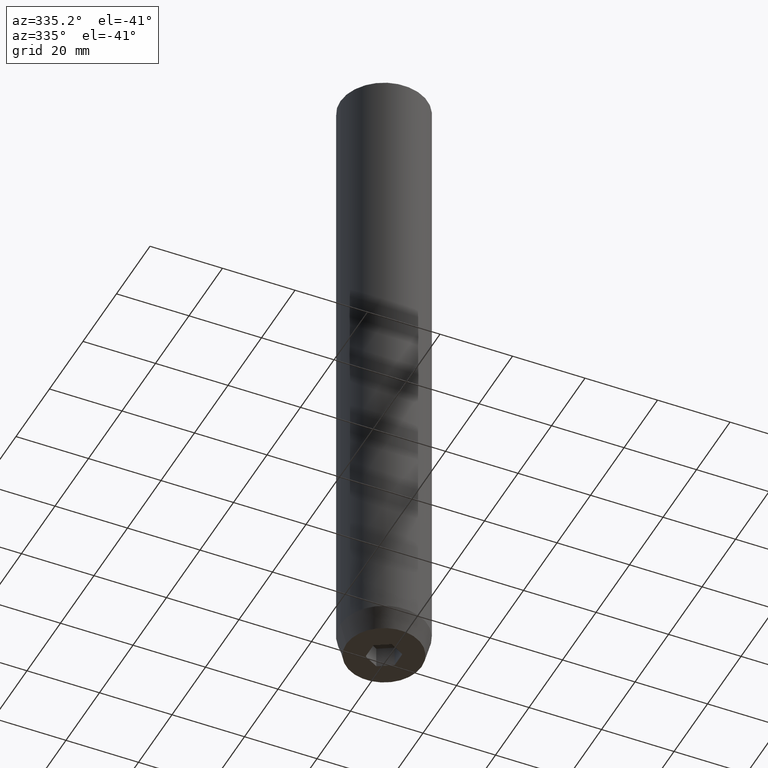
[diagram: clean part render]
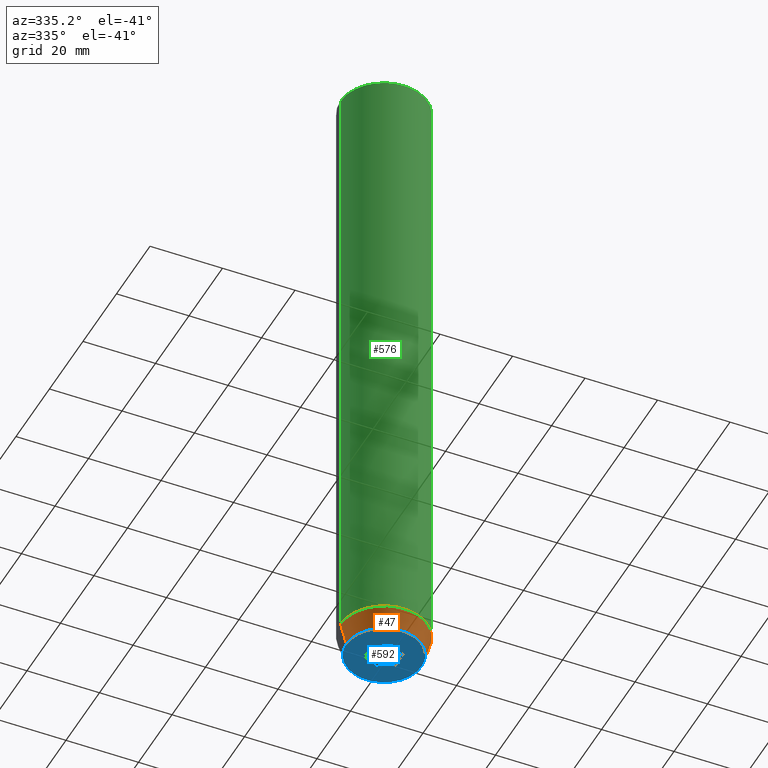
[diagram: same view with three faces highlighted in distinct colors, each labeled with its STEP entity id]
A machine part, auxiliary view with three faces highlighted in distinct colors.
Their STEP definitions:

[orange] entity #47 — the highlighted conical surface has half-angle 15 deg.
#47 = ADVANCED_FACE ( 'NONE', ( #359 ), #133, .T. ) ;
#57 = AXIS2_PLACEMENT_3D ( 'NONE', #552, #428, #436 ) ;
#58 = CIRCLE ( 'NONE', #268, 12.00000000000000000 ) ;
#75 = CARTESIAN_POINT ( 'NONE',  ( 12.00000000000000000, 0.000000000000000000, -174.0000000000000000 ) ) ;
#81 = VECTOR ( 'NONE', #579, 1000.000000000000000 ) ;
#88 = DIRECTION ( 'NONE',  ( 1.000000000000000000, 0.000000000000000000, 0.000000000000000000 ) ) ;
#129 = LINE ( 'NONE', #75, #81 ) ;
#130 = VERTEX_POINT ( 'NONE', #280 ) ;
#133 = CONICAL_SURFACE ( 'NONE', #57, 12.00000000000000000, 0.2617993877991501295 ) ;
#140 = CARTESIAN_POINT ( 'NONE',  ( 0.000000000000000000, 0.000000000000000000, -174.0000000000000000 ) ) ;
#151 = DIRECTION ( 'NONE',  ( -0.2588190451025214056, 3.169619151431772953E-17, 0.9659258262890680902 ) ) ;
#160 = VERTEX_POINT ( 'NONE', #260 ) ;
#179 = ORIENTED_EDGE ( 'NONE', *, *, #442, .T. ) ;
#199 = CARTESIAN_POINT ( 'NONE',  ( 12.00000000000000000, 0.000000000000000000, -174.0000000000000000 ) ) ;
#201 = EDGE_CURVE ( 'NONE', #461, #130, #440, .T. ) ;
#244 = ORIENTED_EDGE ( 'NONE', *, *, #551, .F. ) ;
#260 = CARTESIAN_POINT ( 'NONE',  ( -12.00000000000000000, 1.469576158976823947E-15, -174.0000000000000000 ) ) ;
#262 = AXIS2_PLACEMENT_3D ( 'NONE', #394, #441, #351 ) ;
#268 = AXIS2_PLACEMENT_3D ( 'NONE', #140, #475, #88 ) ;
#280 = CARTESIAN_POINT ( 'NONE',  ( 10.39230484541325872, 0.000000000000000000, -180.0000000000000000 ) ) ;
#288 = ORIENTED_EDGE ( 'NONE', *, *, #447, .F. ) ;
#326 = CARTESIAN_POINT ( 'NONE',  ( -10.39230484541325872, 1.371133222723355777E-15, -180.0000000000000000 ) ) ;
#335 = EDGE_LOOP ( 'NONE', ( #244, #520, #179, #288 ) ) ;
#345 = VECTOR ( 'NONE', #151, 1000.000000000000000 ) ;
#351 = DIRECTION ( 'NONE',  ( 1.000000000000000000, 0.000000000000000000, 0.000000000000000000 ) ) ;
#359 = FACE_OUTER_BOUND ( 'NONE', #335, .T. ) ;
#394 = CARTESIAN_POINT ( 'NONE',  ( 0.000000000000000000, 0.000000000000000000, -180.0000000000000000 ) ) ;
#395 = CARTESIAN_POINT ( 'NONE',  ( -12.00000000000000000, 1.469576158976823947E-15, -174.0000000000000000 ) ) ;
#428 = DIRECTION ( 'NONE',  ( -0.000000000000000000, -0.000000000000000000, 1.000000000000000000 ) ) ;
#436 = DIRECTION ( 'NONE',  ( 1.000000000000000000, 0.000000000000000000, 0.000000000000000000 ) ) ;
#440 = CIRCLE ( 'NONE', #262, 10.39230484541325872 ) ;
#441 = DIRECTION ( 'NONE',  ( -0.000000000000000000, -0.000000000000000000, 1.000000000000000000 ) ) ;
#442 = EDGE_CURVE ( 'NONE', #130, #545, #129, .T. ) ;
#447 = EDGE_CURVE ( 'NONE', #160, #545, #58, .T. ) ;
#461 = VERTEX_POINT ( 'NONE', #326 ) ;
#475 = DIRECTION ( 'NONE',  ( -0.000000000000000000, -0.000000000000000000, 1.000000000000000000 ) ) ;
#520 = ORIENTED_EDGE ( 'NONE', *, *, #201, .T. ) ;
#545 = VERTEX_POINT ( 'NONE', #199 ) ;
#551 = EDGE_CURVE ( 'NONE', #461, #160, #638, .T. ) ;
#552 = CARTESIAN_POINT ( 'NONE',  ( 0.000000000000000000, 0.000000000000000000, -174.0000000000000000 ) ) ;
#579 = DIRECTION ( 'NONE',  ( 0.2588190451025214056, 0.000000000000000000, 0.9659258262890680902 ) ) ;
#638 = LINE ( 'NONE', #395, #345 ) ;

[blue] entity #592 — the highlighted planar face has unit normal (0, 0, -1).
#32 = CARTESIAN_POINT ( 'NONE',  ( -1.999999999999999112, -3.464101615137755275, -180.0000000000000000 ) ) ;
#33 = DIRECTION ( 'NONE',  ( -0.000000000000000000, -0.000000000000000000, 1.000000000000000000 ) ) ;
#37 = CARTESIAN_POINT ( 'NONE',  ( -4.000000000000001776, -2.309401076758503368, -180.0000000000000000 ) ) ;
#45 = LINE ( 'NONE', #637, #574 ) ;
#55 = VERTEX_POINT ( 'NONE', #37 ) ;
#61 = CARTESIAN_POINT ( 'NONE',  ( 4.000000000000000000, 0.000000000000000000, -180.0000000000000000 ) ) ;
#64 = LINE ( 'NONE', #61, #431 ) ;
#90 = ORIENTED_EDGE ( 'NONE', *, *, #201, .F. ) ;
#96 = DIRECTION ( 'NONE',  ( -1.000000000000000000, 0.000000000000000000, -0.000000000000000000 ) ) ;
#105 = FACE_BOUND ( 'NONE', #323, .T. ) ;
#110 = ORIENTED_EDGE ( 'NONE', *, *, #240, .F. ) ;
#117 = EDGE_CURVE ( 'NONE', #463, #55, #515, .T. ) ;
#123 = CIRCLE ( 'NONE', #171, 10.39230484541325872 ) ;
#130 = VERTEX_POINT ( 'NONE', #280 ) ;
#147 = VECTOR ( 'NONE', #627, 1000.000000000000114 ) ;
#171 = AXIS2_PLACEMENT_3D ( 'NONE', #623, #33, #243 ) ;
#182 = ORIENTED_EDGE ( 'NONE', *, *, #346, .F. ) ;
#185 = VECTOR ( 'NONE', #496, 999.9999999999998863 ) ;
#201 = EDGE_CURVE ( 'NONE', #461, #130, #440, .T. ) ;
#224 = ORIENTED_EDGE ( 'NONE', *, *, #544, .F. ) ;
#234 = ORIENTED_EDGE ( 'NONE', *, *, #287, .F. ) ;
#240 = EDGE_CURVE ( 'NONE', #55, #433, #45, .T. ) ;
#241 = VERTEX_POINT ( 'NONE', #448 ) ;
#243 = DIRECTION ( 'NONE',  ( 1.000000000000000000, 0.000000000000000000, 0.000000000000000000 ) ) ;
#247 = VERTEX_POINT ( 'NONE', #456 ) ;
#253 = CARTESIAN_POINT ( 'NONE',  ( 2.000000000000000000, 3.464101615137755275, -180.0000000000000000 ) ) ;
#256 = DIRECTION ( 'NONE',  ( 3.755786496842898071E-16, 1.000000000000000000, 0.000000000000000000 ) ) ;
#261 = EDGE_LOOP ( 'NONE', ( #479, #90 ) ) ;
#262 = AXIS2_PLACEMENT_3D ( 'NONE', #394, #441, #351 ) ;
#280 = CARTESIAN_POINT ( 'NONE',  ( 10.39230484541325872, 0.000000000000000000, -180.0000000000000000 ) ) ;
#283 = ORIENTED_EDGE ( 'NONE', *, *, #542, .F. ) ;
#287 = EDGE_CURVE ( 'NONE', #241, #463, #414, .T. ) ;
#294 = DIRECTION ( 'NONE',  ( 0.000000000000000000, 0.000000000000000000, -1.000000000000000000 ) ) ;
#311 = VECTOR ( 'NONE', #391, 999.9999999999998863 ) ;
#315 = CARTESIAN_POINT ( 'NONE',  ( 1.999999999999999556, -3.464101615137754386, -180.0000000000000000 ) ) ;
#323 = EDGE_LOOP ( 'NONE', ( #224, #110, #510, #234, #182, #283 ) ) ;
#326 = CARTESIAN_POINT ( 'NONE',  ( -10.39230484541325872, 1.371133222723355777E-15, -180.0000000000000000 ) ) ;
#344 = CARTESIAN_POINT ( 'NONE',  ( 0.000000000000000000, 10.39230484541325872, -180.0000000000000000 ) ) ;
#346 = EDGE_CURVE ( 'NONE', #405, #241, #64, .T. ) ;
#351 = DIRECTION ( 'NONE',  ( 1.000000000000000000, 0.000000000000000000, 0.000000000000000000 ) ) ;
#379 = CARTESIAN_POINT ( 'NONE',  ( -4.000000000000000000, 2.309401076758504257, -180.0000000000000000 ) ) ;
#391 = DIRECTION ( 'NONE',  ( 0.8660254037844387076, -0.4999999999999999445, 0.000000000000000000 ) ) ;
#394 = CARTESIAN_POINT ( 'NONE',  ( 0.000000000000000000, 0.000000000000000000, -180.0000000000000000 ) ) ;
#398 = VECTOR ( 'NONE', #409, 1000.000000000000227 ) ;
#405 = VERTEX_POINT ( 'NONE', #619 ) ;
#409 = DIRECTION ( 'NONE',  ( -0.8660254037844385966, -0.4999999999999998890, 0.000000000000000000 ) ) ;
#414 = LINE ( 'NONE', #315, #398 ) ;
#431 = VECTOR ( 'NONE', #450, 1000.000000000000000 ) ;
#432 = CARTESIAN_POINT ( 'NONE',  ( 8.673617379884035472E-16, -4.618802153517004960, -180.0000000000000000 ) ) ;
#433 = VERTEX_POINT ( 'NONE', #379 ) ;
#437 = CARTESIAN_POINT ( 'NONE',  ( -2.000000000000000000, 3.464101615137755275, -180.0000000000000000 ) ) ;
#440 = CIRCLE ( 'NONE', #262, 10.39230484541325872 ) ;
#441 = DIRECTION ( 'NONE',  ( -0.000000000000000000, -0.000000000000000000, 1.000000000000000000 ) ) ;
#445 = PLANE ( 'NONE',  #596 ) ;
#448 = CARTESIAN_POINT ( 'NONE',  ( 4.000000000000000000, -2.309401076758503368, -180.0000000000000000 ) ) ;
#450 = DIRECTION ( 'NONE',  ( 0.000000000000000000, -1.000000000000000000, 0.000000000000000000 ) ) ;
#456 = CARTESIAN_POINT ( 'NONE',  ( 4.336808689942017736E-16, 4.618802153517006737, -180.0000000000000000 ) ) ;
#458 = EDGE_CURVE ( 'NONE', #130, #461, #123, .T. ) ;
#461 = VERTEX_POINT ( 'NONE', #326 ) ;
#463 = VERTEX_POINT ( 'NONE', #432 ) ;
#479 = ORIENTED_EDGE ( 'NONE', *, *, #458, .F. ) ;
#496 = DIRECTION ( 'NONE',  ( 0.8660254037844387076, 0.4999999999999999445, 0.000000000000000000 ) ) ;
#510 = ORIENTED_EDGE ( 'NONE', *, *, #117, .F. ) ;
#515 = LINE ( 'NONE', #32, #147 ) ;
#535 = FACE_OUTER_BOUND ( 'NONE', #261, .T. ) ;
#537 = LINE ( 'NONE', #437, #185 ) ;
#542 = EDGE_CURVE ( 'NONE', #247, #405, #591, .T. ) ;
#544 = EDGE_CURVE ( 'NONE', #433, #247, #537, .T. ) ;
#574 = VECTOR ( 'NONE', #256, 1000.000000000000000 ) ;
#591 = LINE ( 'NONE', #253, #311 ) ;
#592 = ADVANCED_FACE ( 'NONE', ( #105, #535 ), #445, .T. ) ;
#596 = AXIS2_PLACEMENT_3D ( 'NONE', #344, #294, #96 ) ;
#619 = CARTESIAN_POINT ( 'NONE',  ( 4.000000000000000000, 2.309401076758504257, -180.0000000000000000 ) ) ;
#623 = CARTESIAN_POINT ( 'NONE',  ( 0.000000000000000000, 0.000000000000000000, -180.0000000000000000 ) ) ;
#627 = DIRECTION ( 'NONE',  ( -0.8660254037844387076, 0.4999999999999997224, 0.000000000000000000 ) ) ;
#637 = CARTESIAN_POINT ( 'NONE',  ( -4.000000000000000888, 1.502314598737159623E-15, -180.0000000000000000 ) ) ;

[green] entity #576 — the highlighted cylindrical surface (partial cylindrical patch) has radius 12 mm, axis along (-0, -0, 1).
#7 = EDGE_CURVE ( 'NONE', #160, #449, #604, .T. ) ;
#48 = CARTESIAN_POINT ( 'NONE',  ( 0.000000000000000000, 0.000000000000000000, 0.000000000000000000 ) ) ;
#58 = CIRCLE ( 'NONE', #268, 12.00000000000000000 ) ;
#68 = EDGE_CURVE ( 'NONE', #545, #626, #329, .T. ) ;
#79 = CARTESIAN_POINT ( 'NONE',  ( 12.00000000000000000, 0.000000000000000000, 0.000000000000000000 ) ) ;
#88 = DIRECTION ( 'NONE',  ( 1.000000000000000000, 0.000000000000000000, 0.000000000000000000 ) ) ;
#134 = AXIS2_PLACEMENT_3D ( 'NONE', #144, #621, #230 ) ;
#140 = CARTESIAN_POINT ( 'NONE',  ( 0.000000000000000000, 0.000000000000000000, -174.0000000000000000 ) ) ;
#144 = CARTESIAN_POINT ( 'NONE',  ( 0.000000000000000000, 0.000000000000000000, -0.4999999999999501510 ) ) ;
#153 = FACE_OUTER_BOUND ( 'NONE', #320, .T. ) ;
#160 = VERTEX_POINT ( 'NONE', #260 ) ;
#163 = VECTOR ( 'NONE', #613, 1000.000000000000000 ) ;
#173 = CIRCLE ( 'NONE', #134, 12.00000000000000000 ) ;
#198 = ORIENTED_EDGE ( 'NONE', *, *, #447, .T. ) ;
#199 = CARTESIAN_POINT ( 'NONE',  ( 12.00000000000000000, 0.000000000000000000, -174.0000000000000000 ) ) ;
#230 = DIRECTION ( 'NONE',  ( 1.000000000000000000, 0.000000000000000000, 0.000000000000000000 ) ) ;
#249 = CYLINDRICAL_SURFACE ( 'NONE', #507, 12.00000000000000000 ) ;
#260 = CARTESIAN_POINT ( 'NONE',  ( -12.00000000000000000, 1.469576158976823947E-15, -174.0000000000000000 ) ) ;
#268 = AXIS2_PLACEMENT_3D ( 'NONE', #140, #475, #88 ) ;
#290 = CARTESIAN_POINT ( 'NONE',  ( -12.00000000000000000, 1.469576158976823947E-15, -0.4999999999999501510 ) ) ;
#300 = DIRECTION ( 'NONE',  ( -0.000000000000000000, -0.000000000000000000, 1.000000000000000000 ) ) ;
#320 = EDGE_LOOP ( 'NONE', ( #325, #198, #633, #363 ) ) ;
#325 = ORIENTED_EDGE ( 'NONE', *, *, #7, .F. ) ;
#329 = LINE ( 'NONE', #79, #457 ) ;
#349 = DIRECTION ( 'NONE',  ( 1.000000000000000000, 0.000000000000000000, 0.000000000000000000 ) ) ;
#363 = ORIENTED_EDGE ( 'NONE', *, *, #411, .T. ) ;
#411 = EDGE_CURVE ( 'NONE', #626, #449, #173, .T. ) ;
#413 = CARTESIAN_POINT ( 'NONE',  ( -12.00000000000000000, 1.469576158976823947E-15, 0.000000000000000000 ) ) ;
#447 = EDGE_CURVE ( 'NONE', #160, #545, #58, .T. ) ;
#449 = VERTEX_POINT ( 'NONE', #290 ) ;
#457 = VECTOR ( 'NONE', #624, 1000.000000000000000 ) ;
#475 = DIRECTION ( 'NONE',  ( -0.000000000000000000, -0.000000000000000000, 1.000000000000000000 ) ) ;
#507 = AXIS2_PLACEMENT_3D ( 'NONE', #48, #300, #349 ) ;
#545 = VERTEX_POINT ( 'NONE', #199 ) ;
#576 = ADVANCED_FACE ( 'NONE', ( #153 ), #249, .T. ) ;
#589 = CARTESIAN_POINT ( 'NONE',  ( 12.00000000000000000, 0.000000000000000000, -0.4999999999999501510 ) ) ;
#604 = LINE ( 'NONE', #413, #163 ) ;
#613 = DIRECTION ( 'NONE',  ( -0.000000000000000000, -0.000000000000000000, 1.000000000000000000 ) ) ;
#621 = DIRECTION ( 'NONE',  ( 0.000000000000000000, 0.000000000000000000, -1.000000000000000000 ) ) ;
#624 = DIRECTION ( 'NONE',  ( -0.000000000000000000, -0.000000000000000000, 1.000000000000000000 ) ) ;
#626 = VERTEX_POINT ( 'NONE', #589 ) ;
#633 = ORIENTED_EDGE ( 'NONE', *, *, #68, .T. ) ;